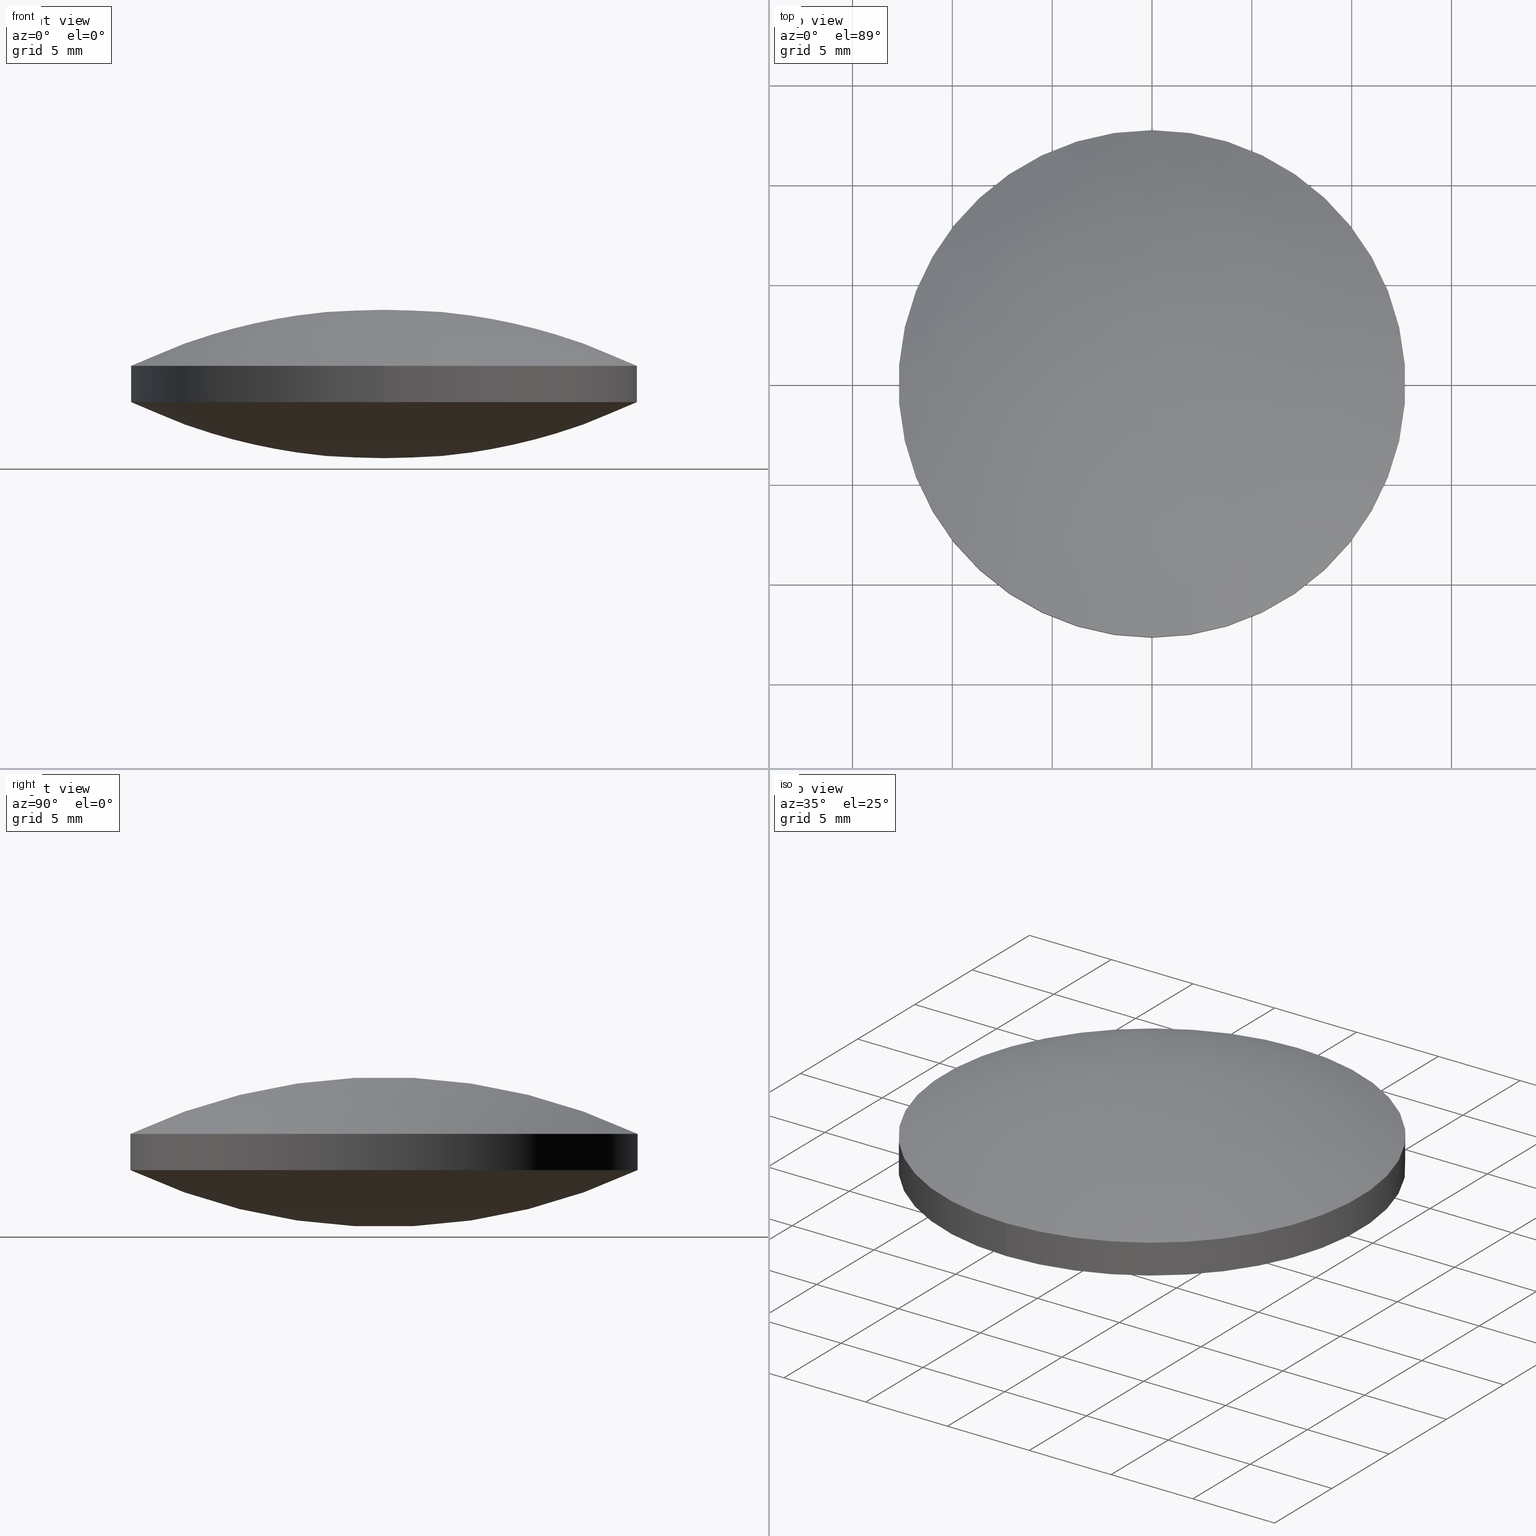
[diagram: canonical four-view strip — front | top / right | iso, engineering-drawing reading convention]
A machine part, canonical four-view strip (front | top / right | iso — engineering-drawing reading convention). The complete STEP part file that produces these views, byte-faithful:
ISO-10303-21;
HEADER;
FILE_DESCRIPTION (( 'STEP AP203' ),
    '1' );
FILE_NAME ('111-0206E BK7 bi-cx 25.4 F30.STEP',
    '2019-01-09T12:15:31',
    ( '' ),
    ( '' ),
    'SwSTEP 2.0',
    'SolidWorks 2017',
    '' );
FILE_SCHEMA (( 'CONFIG_CONTROL_DESIGN' ));
ENDSEC;

DATA;
#1 = PERSON_AND_ORGANIZATION ( #214, #49 ) ;
#2 = CLOSED_SHELL ( 'NONE', ( #187, #109, #166, #210, #21, #236 ) ) ;
#3 = CARTESIAN_POINT ( 'NONE',  ( -9.095884200418115700, -4.578965513329506200, 7.522943102680741800 ) ) ;
#4 = DIRECTION ( 'NONE',  ( -7.060497748353330300E-032, -3.671183807839870100E-016, 1.000000000000000000 ) ) ;
#5 = CYLINDRICAL_SURFACE ( 'NONE', #201, 12.69999999999999900 ) ;
#6 = CARTESIAN_POINT ( 'NONE',  ( 4.996003610813200500E-016, 2.442490654175340100E-015, 2.842753387405240400 ) ) ;
#7 = CC_DESIGN_PERSON_AND_ORGANIZATION_ASSIGNMENT ( #149, #202, ( #195 ) ) ;
#8 = CARTESIAN_POINT ( 'NONE',  ( -7.931029106700789200, -12.84223858196710600, 3.704979079978466800 ) ) ;
#9 = APPROVAL_PERSON_ORGANIZATION ( #141, #198, #129 ) ;
#10 = CARTESIAN_POINT ( 'NONE',  ( -7.931029106700789200, -12.84223858196709700, 3.795020920021535000 ) ) ;
#11 = CARTESIAN_POINT ( 'NONE',  ( 4.996003610813199500E-016, 1.776356839400249300E-015, 4.657246612594759600 ) ) ;
#12 = EDGE_CURVE ( 'NONE', #220, #121, #185, .T. ) ;
#13 = APPROVAL_ROLE ( '' ) ;
#14 = CARTESIAN_POINT ( 'NONE',  ( 2.054901795998458500E-015, 12.70000000000000100, 2.842753387405244900 ) ) ;
#15 = EDGE_LOOP ( 'NONE', ( #40, #239 ) ) ;
#16 = CARTESIAN_POINT ( 'NONE',  ( 4.604542356663950300, 4.578965513329508000, 8.537664126832286400 ) ) ;
#17 = EDGE_LOOP ( 'NONE', ( #73, #255 ) ) ;
#18 = EDGE_CURVE ( 'NONE', #220, #128, #72, .T. ) ;
#19 = PERSON_AND_ORGANIZATION ( #214, #49 ) ;
#20 = AXIS2_PLACEMENT_3D ( 'NONE', #50, #164, #143 ) ;
#21 = ADVANCED_FACE ( 'NONE', ( #22 ), #43, .T. ) ;
#22 = FACE_OUTER_BOUND ( 'NONE', #163, .T. ) ;
#23 = ORIENTED_EDGE ( 'NONE', *, *, #182, .T. ) ;
#24 = ORIENTED_EDGE ( 'NONE', *, *, #249, .T. ) ;
#25 = CARTESIAN_POINT ( 'NONE',  ( -4.604542356663938700, 4.578965513329506200, 8.537664126832297000 ) ) ;
#26 = FACE_OUTER_BOUND ( 'NONE', #75, .T. ) ;
#27 = CARTESIAN_POINT ( 'NONE',  ( -4.604542356663936100, -4.578965513329505300, 8.537664126832297000 ) ) ;
#28 = CARTESIAN_POINT ( 'NONE',  ( 11.55593420558198200, -12.84223858196710000, 1.978938848661997900 ) ) ;
#29 = LOCAL_TIME ( 14, 15, 31.00000000000000000, #53 ) ;
#30 = VERTEX_POINT ( 'NONE', #132 ) ;
#31 = PRODUCT_RELATED_PRODUCT_CATEGORY ( 'detail', '', ( #184 ) ) ;
#32 = DIRECTION ( 'NONE',  ( 7.060497748353330300E-032, 3.671183807839870100E-016, -1.000000000000000000 ) ) ;
#33 = CARTESIAN_POINT ( 'NONE',  ( 9.095884200418119300, 4.578965513329508000, 7.522943102680733900 ) ) ;
#34 =( NAMED_UNIT ( * ) PLANE_ANGLE_UNIT ( ) SI_UNIT ( $, .RADIAN. ) );
#35 = APPLICATION_PROTOCOL_DEFINITION ( 'international standard', 'config_control_design', 1994, #252 ) ;
#36 = ADVANCED_BREP_SHAPE_REPRESENTATION ( '111-0206E BK7 bi-cx 25.4 F30', ( #146, #181 ), #77 ) ;
#37 = AXIS2_PLACEMENT_3D ( 'NONE', #139, #69, #229 ) ;
#38 =( BOUNDED_SURFACE ( )  B_SPLINE_SURFACE ( 3, 3, ( 
 ( #190, #115, #8, #188 ),
 ( #215, #27, #3, #41 ),
 ( #96, #25, #244, #240 ),
 ( #154, #80, #241, #97 ) ),
 .UNSPECIFIED., .F., .F., .F. ) 
 B_SPLINE_SURFACE_WITH_KNOTS ( ( 4, 4 ),
 ( 4, 4 ),
 ( 0.0000000000000000000, 1.000000000000000000 ),
 ( 0.0000000000000000000, 1.000000000000000000 ),
 .UNSPECIFIED. ) 
 GEOMETRIC_REPRESENTATION_ITEM ( )  RATIONAL_B_SPLINE_SURFACE ( (
 ( 1.000000000000000000, 0.9836103128691405800, 0.9836103128691405800, 1.000000000000000000),
 ( 0.9348719009845465300, 0.9195496430199779900, 0.9195496430199779900, 0.9348719009845465300),
 ( 0.9348719009845465300, 0.9195496430199779900, 0.9195496430199779900, 0.9348719009845465300),
 ( 1.000000000000000000, 0.9836103128691405800, 0.9836103128691405800, 1.000000000000000000) ) ) 
 REPRESENTATION_ITEM ( '' )  SURFACE ( )  );
#39 = DATE_AND_TIME ( #231, #89 ) ;
#40 = ORIENTED_EDGE ( 'NONE', *, *, #182, .F. ) ;
#41 = CARTESIAN_POINT ( 'NONE',  ( -13.25319046841192600, -4.578965513329508000, 5.543393934710477900 ) ) ;
#42 = DIRECTION ( 'NONE',  ( 0.0000000000000000000, -1.000000000000000000, -3.414809992080329000E-016 ) ) ;
#43 = CYLINDRICAL_SURFACE ( 'NONE', #85, 12.69999999999999900 ) ;
#44 = ORIENTED_EDGE ( 'NONE', *, *, #111, .F. ) ;
#45 = CARTESIAN_POINT ( 'NONE',  ( 9.095884200418124600, -4.578965513329501700, 7.522943102680734700 ) ) ;
#46 = CARTESIAN_POINT ( 'NONE',  ( 5.204170427930421300E-015, -12.84223858196709500, 2.910249104505537900 ) ) ;
#47 = CARTESIAN_POINT ( 'NONE',  ( -5.871703759095003800E-016, 4.578965513329511500, -1.037664126832292800 ) ) ;
#48 = CARTESIAN_POINT ( 'NONE',  ( 11.55593420558198800, -12.84223858196709900, 5.521061151338002100 ) ) ;
#49 = ORGANIZATION ( 'UNSPECIFIED', 'UNSPECIFIED', '' ) ;
#50 = CARTESIAN_POINT ( 'NONE',  ( 4.996003610813199500E-016, 1.776356839400249300E-015, 4.657246612594759600 ) ) ;
#51 = APPROVAL_ROLE ( '' ) ;
#52 = CARTESIAN_POINT ( 'NONE',  ( 1.734723475976807400E-014, 4.578965513329507100, 8.537664126832289900 ) ) ;
#53 = COORDINATED_UNIVERSAL_TIME_OFFSET ( 2, 0, .AHEAD. ) ;
#54 = PERSON_AND_ORGANIZATION ( #214, #49 ) ;
#55 = ORIENTED_EDGE ( 'NONE', *, *, #193, .T. ) ;
#56 =( BOUNDED_SURFACE ( )  B_SPLINE_SURFACE ( 3, 3, ( 
 ( #28, #68, #178, #137 ),
 ( #156, #45, #173, #179 ),
 ( #126, #33, #16, #52 ),
 ( #70, #107, #145, #161 ) ),
 .UNSPECIFIED., .F., .F., .F. ) 
 B_SPLINE_SURFACE_WITH_KNOTS ( ( 4, 4 ),
 ( 4, 4 ),
 ( 0.0000000000000000000, 1.000000000000000000 ),
 ( 0.0000000000000000000, 1.000000000000000000 ),
 .UNSPECIFIED. ) 
 GEOMETRIC_REPRESENTATION_ITEM ( )  RATIONAL_B_SPLINE_SURFACE ( (
 ( 1.000000000000000000, 0.9836103128691408000, 0.9836103128691408000, 1.000000000000000000),
 ( 0.9348719009845465300, 0.9195496430199782100, 0.9195496430199782100, 0.9348719009845465300),
 ( 0.9348719009845465300, 0.9195496430199782100, 0.9195496430199782100, 0.9348719009845465300),
 ( 1.000000000000000000, 0.9836103128691408000, 0.9836103128691408000, 1.000000000000000000) ) ) 
 REPRESENTATION_ITEM ( '' )  SURFACE ( )  );
#57 = CC_DESIGN_PERSON_AND_ORGANIZATION_ASSIGNMENT ( #165, #225, ( #136 ) ) ;
#58 = LOCAL_TIME ( 14, 15, 31.00000000000000000, #234 ) ;
#59 = PRODUCT_DEFINITION_SHAPE ( 'NONE', 'NONE',  #177 ) ;
#60 = CARTESIAN_POINT ( 'NONE',  ( 4.996003610813200500E-016, -12.69999999999999800, 2.842753387405235500 ) ) ;
#61 = COORDINATED_UNIVERSAL_TIME_OFFSET ( 2, 0, .AHEAD. ) ;
#62 = VECTOR ( 'NONE', #83, 1000.000000000000000 ) ;
#63 = DIRECTION ( 'NONE',  ( 0.0000000000000000000, -1.000000000000000000, -3.756290991288362200E-016 ) ) ;
#64 = CARTESIAN_POINT ( 'NONE',  ( -9.095884200418110400, -4.578965513329498200, -0.02294310268073641200 ) ) ;
#65 = CARTESIAN_POINT ( 'NONE',  ( -4.162366416110042900E-015, -12.84223858196709500, 2.910249104505536500 ) ) ;
#66 = APPROVAL_DATE_TIME ( #153, #172 ) ;
#67 = ORIENTED_EDGE ( 'NONE', *, *, #18, .F. ) ;
#68 = CARTESIAN_POINT ( 'NONE',  ( 7.931029106700797200, -12.84223858196709900, 3.704979079978460100 ) ) ;
#69 = DIRECTION ( 'NONE',  ( -1.000000000000000000, -2.438618327276940000E-016, 4.572098921307439800E-016 ) ) ;
#70 = CARTESIAN_POINT ( 'NONE',  ( 11.55593420558198200, 12.84223858196710900, 1.978938848661997900 ) ) ;
#71 = PERSON_AND_ORGANIZATION_ROLE ( 'design_owner' ) ;
#72 = LINE ( 'NONE', #60, #74 ) ;
#73 = ORIENTED_EDGE ( 'NONE', *, *, #111, .T. ) ;
#74 = VECTOR ( 'NONE', #218, 1000.000000000000000 ) ;
#75 = EDGE_LOOP ( 'NONE', ( #186, #23 ) ) ;
#76 = CARTESIAN_POINT ( 'NONE',  ( 2.054901795998458500E-015, 12.70000000000000100, 2.842753387405244900 ) ) ;
#77 =( GEOMETRIC_REPRESENTATION_CONTEXT ( 3 ) GLOBAL_UNCERTAINTY_ASSIGNED_CONTEXT ( ( #95 ) ) GLOBAL_UNIT_ASSIGNED_CONTEXT ( ( #91, #34, #162 ) ) REPRESENTATION_CONTEXT ( 'NONE', 'WORKASPACE' ) );
#78 = PERSON_AND_ORGANIZATION ( #214, #49 ) ;
#79 = CIRCLE ( 'NONE', #37, 29.78999999999999900 ) ;
#80 = CARTESIAN_POINT ( 'NONE',  ( -4.014866355934887400, 12.84223858196710700, 4.589750895494468400 ) ) ;
#81 = CARTESIAN_POINT ( 'NONE',  ( -11.55593420558198400, -12.84223858196709100, 5.521061151338002100 ) ) ;
#82 = FACE_OUTER_BOUND ( 'NONE', #15, .T. ) ;
#83 = DIRECTION ( 'NONE',  ( -7.060497748353330300E-032, -3.671183807839870100E-016, 1.000000000000000000 ) ) ;
#84 = CARTESIAN_POINT ( 'NONE',  ( -4.604542356663936100, 4.578965513329512400, -1.037664126832292600 ) ) ;
#85 = AXIS2_PLACEMENT_3D ( 'NONE', #217, #4, #63 ) ;
#86 = CARTESIAN_POINT ( 'NONE',  ( 4.604542356663941400, -4.578965513329502600, -1.037664126832292800 ) ) ;
#87 = DATE_TIME_ROLE ( 'classification_date' ) ;
#88 = DATE_AND_TIME ( #167, #170 ) ;
#89 = LOCAL_TIME ( 14, 15, 31.00000000000000000, #194 ) ;
#90 = CC_DESIGN_APPROVAL ( #198, ( #177 ) ) ;
#91 =( LENGTH_UNIT ( ) NAMED_UNIT ( * ) SI_UNIT ( .MILLI., .METRE. ) );
#92 = PERSON_AND_ORGANIZATION_ROLE ( 'creator' ) ;
#93 = ORIENTED_EDGE ( 'NONE', *, *, #144, .F. ) ;
#94 = CC_DESIGN_PERSON_AND_ORGANIZATION_ASSIGNMENT ( #54, #230, ( #177 ) ) ;
#95 = UNCERTAINTY_MEASURE_WITH_UNIT (LENGTH_MEASURE( 1.000000000000000100E-005 ), #91, 'distance_accuracy_value', 'NONE');
#96 = CARTESIAN_POINT ( 'NONE',  ( 9.425364389193862000E-015, 4.578965513329508000, 8.537664126832293500 ) ) ;
#97 = CARTESIAN_POINT ( 'NONE',  ( -11.55593420558200000, 12.84223858196710400, 1.978938848662001400 ) ) ;
#98 = DIRECTION ( 'NONE',  ( 0.0000000000000000000, -1.000000000000000000, -3.756290991288362200E-016 ) ) ;
#99 = CALENDAR_DATE ( 2019, 9, 1 ) ;
#100 = ORIENTED_EDGE ( 'NONE', *, *, #12, .F. ) ;
#101 = DIRECTION ( 'NONE',  ( 0.0000000000000000000, -1.000000000000000000, -3.756290991288362200E-016 ) ) ;
#102 = CARTESIAN_POINT ( 'NONE',  ( -13.25319046841191700, 4.578965513329515100, 1.956606065289523900 ) ) ;
#103 = CARTESIAN_POINT ( 'NONE',  ( -9.095884200418108600, 4.578965513329515100, -0.02294310268073770900 ) ) ;
#104 = CARTESIAN_POINT ( 'NONE',  ( 4.014866355934890100, 12.84223858196710700, 2.910249104505532100 ) ) ;
#105 = APPROVAL_STATUS ( 'not_yet_approved' ) ;
#106 = APPROVAL ( #122, 'UNSPECIFIED' ) ;
#107 = CARTESIAN_POINT ( 'NONE',  ( 7.931029106700795400, 12.84223858196710700, 3.704979079978461000 ) ) ;
#108 = LOCAL_TIME ( 14, 15, 31.00000000000000000, #135 ) ;
#109 = ADVANCED_FACE ( 'NONE', ( #26 ), #38, .T. ) ;
#110 = CARTESIAN_POINT ( 'NONE',  ( 4.996003610813199500E-016, -12.69999999999999800, 4.657246612594756000 ) ) ;
#111 = EDGE_CURVE ( 'NONE', #121, #220, #189, .T. ) ;
#112 = CARTESIAN_POINT ( 'NONE',  ( 3.552713678800500100E-015, 1.065814103640150000E-014, 29.78999999999999900 ) ) ;
#113 = PERSON_AND_ORGANIZATION ( #214, #49 ) ;
#114 = FACE_OUTER_BOUND ( 'NONE', #151, .T. ) ;
#115 = CARTESIAN_POINT ( 'NONE',  ( -4.014866355934878500, -12.84223858196710600, 4.589750895494464800 ) ) ;
#116 = CC_DESIGN_APPROVAL ( #106, ( #195 ) ) ;
#117 = CARTESIAN_POINT ( 'NONE',  ( 7.931029106700799000, 12.84223858196710700, 3.795020920021530600 ) ) ;
#118 =( BOUNDED_SURFACE ( )  B_SPLINE_SURFACE ( 3, 3, ( 
 ( #65, #197, #199, #48 ),
 ( #123, #86, #160, #203 ),
 ( #47, #222, #247, #248 ),
 ( #158, #104, #117, #196 ) ),
 .UNSPECIFIED., .F., .F., .F. ) 
 B_SPLINE_SURFACE_WITH_KNOTS ( ( 4, 4 ),
 ( 4, 4 ),
 ( 0.0000000000000000000, 1.000000000000000000 ),
 ( 0.0000000000000000000, 1.000000000000000000 ),
 .UNSPECIFIED. ) 
 GEOMETRIC_REPRESENTATION_ITEM ( )  RATIONAL_B_SPLINE_SURFACE ( (
 ( 1.000000000000000000, 0.9836103128691405800, 0.9836103128691405800, 1.000000000000000000),
 ( 0.9348719009845467600, 0.9195496430199782100, 0.9195496430199782100, 0.9348719009845467600),
 ( 0.9348719009845467600, 0.9195496430199782100, 0.9195496430199782100, 0.9348719009845467600),
 ( 1.000000000000000000, 0.9836103128691405800, 0.9836103128691405800, 1.000000000000000000) ) ) 
 REPRESENTATION_ITEM ( '' )  SURFACE ( )  );
#119 = CARTESIAN_POINT ( 'NONE',  ( -11.55593420558197900, 12.84223858196711100, 5.521061151337998600 ) ) ;
#120 = CARTESIAN_POINT ( 'NONE',  ( -4.014866355934875800, 12.84223858196710700, 2.910249104505533000 ) ) ;
#121 = VERTEX_POINT ( 'NONE', #76 ) ;
#122 = APPROVAL_STATUS ( 'not_yet_approved' ) ;
#123 = CARTESIAN_POINT ( 'NONE',  ( -2.820440220064390100E-015, -4.578965513329500900, -1.037664126832291900 ) ) ;
#124 = DIRECTION ( 'NONE',  ( 0.0000000000000000000, 0.0000000000000000000, 1.000000000000000000 ) ) ;
#125 = CC_DESIGN_APPROVAL ( #172, ( #136 ) ) ;
#126 = CARTESIAN_POINT ( 'NONE',  ( 13.25319046841191700, 4.578965513329508000, 5.543393934710474400 ) ) ;
#127 = CIRCLE ( 'NONE', #20, 12.69999999999999900 ) ;
#128 = VERTEX_POINT ( 'NONE', #110 ) ;
#129 = APPROVAL_ROLE ( '' ) ;
#130 = APPROVAL_DATE_TIME ( #88, #106 ) ;
#131 = FACE_OUTER_BOUND ( 'NONE', #17, .T. ) ;
#132 = CARTESIAN_POINT ( 'NONE',  ( 2.054901795998458500E-015, 12.70000000000000100, 4.657246612594764000 ) ) ;
#133 = DIRECTION ( 'NONE',  ( 0.0000000000000000000, -1.000000000000000000, -3.756290991288362200E-016 ) ) ;
#134 = CALENDAR_DATE ( 2019, 9, 1 ) ;
#135 = COORDINATED_UNIVERSAL_TIME_OFFSET ( 2, 0, .AHEAD. ) ;
#136 = PRODUCT_DEFINITION_FORMATION_WITH_SPECIFIED_SOURCE ( 'ANY', '', #184, .NOT_KNOWN. ) ;
#137 = CARTESIAN_POINT ( 'NONE',  ( 2.081668171172168500E-014, -12.84223858196710200, 4.589750895494459500 ) ) ;
#138 = LINE ( 'NONE', #14, #62 ) ;
#139 = CARTESIAN_POINT ( 'NONE',  ( -3.552713678800500100E-015, 1.065814103640150000E-014, -22.28999999999999900 ) ) ;
#140 = CARTESIAN_POINT ( 'NONE',  ( 6.938893903907228400E-015, -4.578965513329500900, -1.037664126832290100 ) ) ;
#141 = PERSON_AND_ORGANIZATION ( #214, #49 ) ;
#142 = DATE_TIME_ROLE ( 'creation_date' ) ;
#143 = DIRECTION ( 'NONE',  ( 0.0000000000000000000, -1.000000000000000000, -3.414809992080329000E-016 ) ) ;
#144 = EDGE_CURVE ( 'NONE', #220, #121, #238, .T. ) ;
#145 = CARTESIAN_POINT ( 'NONE',  ( 4.014866355934893600, 12.84223858196710700, 4.589750895494457700 ) ) ;
#146 = MANIFOLD_SOLID_BREP ( 'Imported1', #2 ) ;
#147 = SHAPE_DEFINITION_REPRESENTATION ( #59, #36 ) ;
#148 = CC_DESIGN_SECURITY_CLASSIFICATION ( #195, ( #136 ) ) ;
#149 = PERSON_AND_ORGANIZATION ( #214, #49 ) ;
#150 = APPROVAL_DATE_TIME ( #171, #198 ) ;
#151 = EDGE_LOOP ( 'NONE', ( #100, #207 ) ) ;
#152 = DIRECTION ( 'NONE',  ( -2.438618327276950800E-016, -1.000000000000000000, 0.0000000000000000000 ) ) ;
#153 = DATE_AND_TIME ( #99, #29 ) ;
#154 = CARTESIAN_POINT ( 'NONE',  ( 5.605242491704995700E-015, 12.84223858196710700, 4.589750895494466600 ) ) ;
#155 = DIRECTION ( 'NONE',  ( 1.000000000000000000, -2.438618327276949900E-016, -4.572098921307439800E-016 ) ) ;
#156 = CARTESIAN_POINT ( 'NONE',  ( 13.25319046841191900, -4.578965513329500900, 5.543393934710477900 ) ) ;
#157 = CARTESIAN_POINT ( 'NONE',  ( 1.214306433183765000E-014, 12.84223858196710700, 2.910249104505533900 ) ) ;
#158 = CARTESIAN_POINT ( 'NONE',  ( 2.101097257739582800E-015, 12.84223858196710700, 2.910249104505533000 ) ) ;
#159 = SECURITY_CLASSIFICATION_LEVEL ( 'unclassified' ) ;
#160 = CARTESIAN_POINT ( 'NONE',  ( 9.095884200418117500, -4.578965513329505300, -0.02294310268073727200 ) ) ;
#161 = CARTESIAN_POINT ( 'NONE',  ( 1.387778780781445700E-014, 12.84223858196710700, 4.589750895494461200 ) ) ;
#162 =( NAMED_UNIT ( * ) SI_UNIT ( $, .STERADIAN. ) SOLID_ANGLE_UNIT ( ) );
#163 = EDGE_LOOP ( 'NONE', ( #175, #93, #212, #235 ) ) ;
#164 = DIRECTION ( 'NONE',  ( 7.060497748353330300E-032, 3.671183807839870100E-016, -1.000000000000000000 ) ) ;
#165 = PERSON_AND_ORGANIZATION ( #214, #49 ) ;
#166 = ADVANCED_FACE ( 'NONE', ( #243 ), #5, .T. ) ;
#167 = CALENDAR_DATE ( 2019, 9, 1 ) ;
#168 = DIRECTION ( 'NONE',  ( 7.060497748353330300E-032, 3.671183807839870100E-016, -1.000000000000000000 ) ) ;
#169 = AXIS2_PLACEMENT_3D ( 'NONE', #112, #155, #152 ) ;
#170 = LOCAL_TIME ( 14, 15, 31.00000000000000000, #61 ) ;
#171 = DATE_AND_TIME ( #180, #108 ) ;
#172 = APPROVAL ( #105, 'UNSPECIFIED' ) ;
#173 = CARTESIAN_POINT ( 'NONE',  ( 4.604542356663955600, -4.578965513329502600, 8.537664126832291700 ) ) ;
#174 = CARTESIAN_POINT ( 'NONE',  ( -13.25319046841191900, -4.578965513329497300, 1.956606065289524700 ) ) ;
#175 = ORIENTED_EDGE ( 'NONE', *, *, #193, .F. ) ;
#176 = CARTESIAN_POINT ( 'NONE',  ( -4.014866355934883800, -12.84223858196709700, 2.910249104505537000 ) ) ;
#177 = PRODUCT_DEFINITION ( 'UNKNOWN', '', #136, #245 ) ;
#178 = CARTESIAN_POINT ( 'NONE',  ( 4.014866355934898000, -12.84223858196709900, 4.589750895494457700 ) ) ;
#179 = CARTESIAN_POINT ( 'NONE',  ( 2.081668171172168200E-014, -4.578965513329503500, 8.537664126832291700 ) ) ;
#180 = CALENDAR_DATE ( 2019, 9, 1 ) ;
#181 = AXIS2_PLACEMENT_3D ( 'NONE', #206, #124, #253 ) ;
#182 = EDGE_CURVE ( 'NONE', #128, #30, #79, .T. ) ;
#183 = CC_DESIGN_DATE_AND_TIME_ASSIGNMENT ( #39, #142, ( #177 ) ) ;
#184 = PRODUCT ( '111-0206E BK7 bi-cx 25.4 F30', '111-0206E BK7 bi-cx 25.4 F30', '', ( #233 ) ) ;
#185 = CIRCLE ( 'NONE', #169, 29.78999999999999900 ) ;
#186 = ORIENTED_EDGE ( 'NONE', *, *, #224, .F. ) ;
#187 = ADVANCED_FACE ( 'NONE', ( #131 ), #118, .T. ) ;
#188 = CARTESIAN_POINT ( 'NONE',  ( -11.55593420558198600, -12.84223858196710600, 1.978938848661998800 ) ) ;
#189 = CIRCLE ( 'NONE', #213, 12.69999999999999900 ) ;
#190 = CARTESIAN_POINT ( 'NONE',  ( 1.186870616555459500E-014, -12.84223858196710200, 4.589750895494463000 ) ) ;
#191 = DIRECTION ( 'NONE',  ( -7.060497748353330300E-032, -3.671183807839870100E-016, 1.000000000000000000 ) ) ;
#192 = DIRECTION ( 'NONE',  ( 7.060497748353330300E-032, 3.671183807839870100E-016, -1.000000000000000000 ) ) ;
#193 = EDGE_CURVE ( 'NONE', #121, #30, #138, .T. ) ;
#194 = COORDINATED_UNIVERSAL_TIME_OFFSET ( 2, 0, .AHEAD. ) ;
#195 = SECURITY_CLASSIFICATION ( '', '', #159 ) ;
#196 = CARTESIAN_POINT ( 'NONE',  ( 11.55593420558199500, 12.84223858196710400, 5.521061151337998600 ) ) ;
#197 = CARTESIAN_POINT ( 'NONE',  ( 4.014866355934885600, -12.84223858196709900, 2.910249104505535600 ) ) ;
#198 = APPROVAL ( #204, 'UNSPECIFIED' ) ;
#199 = CARTESIAN_POINT ( 'NONE',  ( 7.931029106700792800, -12.84223858196709900, 3.795020920021534100 ) ) ;
#200 = CARTESIAN_POINT ( 'NONE',  ( 4.996003610813200500E-016, -12.69999999999999800, 2.842753387405235500 ) ) ;
#201 = AXIS2_PLACEMENT_3D ( 'NONE', #6, #191, #98 ) ;
#202 = PERSON_AND_ORGANIZATION_ROLE ( 'classification_officer' ) ;
#203 = CARTESIAN_POINT ( 'NONE',  ( 13.25319046841192300, -4.578965513329505300, 1.956606065289524700 ) ) ;
#204 = APPROVAL_STATUS ( 'not_yet_approved' ) ;
#205 = CC_DESIGN_DATE_AND_TIME_ASSIGNMENT ( #250, #87, ( #195 ) ) ;
#206 = CARTESIAN_POINT ( 'NONE',  ( 0.0000000000000000000, 0.0000000000000000000, 0.0000000000000000000 ) ) ;
#207 = ORIENTED_EDGE ( 'NONE', *, *, #144, .T. ) ;
#208 = EDGE_LOOP ( 'NONE', ( #44, #55, #24, #67 ) ) ;
#209 = CC_DESIGN_PERSON_AND_ORGANIZATION_ASSIGNMENT ( #1, #71, ( #184 ) ) ;
#210 = ADVANCED_FACE ( 'NONE', ( #114 ), #237, .T. ) ;
#211 = CIRCLE ( 'NONE', #216, 12.69999999999999900 ) ;
#212 = ORIENTED_EDGE ( 'NONE', *, *, #18, .T. ) ;
#213 = AXIS2_PLACEMENT_3D ( 'NONE', #221, #168, #133 ) ;
#214 = PERSON ( 'UNSPECIFIED', 'UNSPECIFIED', 'UNSPECIFIED', ('UNSPECIFIED'), ('UNSPECIFIED'), ('UNSPECIFIED') ) ;
#215 = CARTESIAN_POINT ( 'NONE',  ( 1.165863423334874400E-014, -4.578965513329503500, 8.537664126832293500 ) ) ;
#216 = AXIS2_PLACEMENT_3D ( 'NONE', #11, #32, #42 ) ;
#217 = CARTESIAN_POINT ( 'NONE',  ( 4.996003610813200500E-016, 2.442490654175340100E-015, 2.842753387405240400 ) ) ;
#218 = DIRECTION ( 'NONE',  ( -7.060497748353330300E-032, -3.671183807839870100E-016, 1.000000000000000000 ) ) ;
#219 = CARTESIAN_POINT ( 'NONE',  ( 4.996003610813200500E-016, 2.442490654175340100E-015, 2.842753387405240400 ) ) ;
#220 = VERTEX_POINT ( 'NONE', #200 ) ;
#221 = CARTESIAN_POINT ( 'NONE',  ( 4.996003610813200500E-016, 2.442490654175340100E-015, 2.842753387405240400 ) ) ;
#222 = CARTESIAN_POINT ( 'NONE',  ( 4.604542356663945000, 4.578965513329509700, -1.037664126832293500 ) ) ;
#223 = CARTESIAN_POINT ( 'NONE',  ( 8.673617379884033900E-015, 4.578965513329511500, -1.037664126832291900 ) ) ;
#224 = EDGE_CURVE ( 'NONE', #128, #30, #211, .T. ) ;
#225 = PERSON_AND_ORGANIZATION_ROLE ( 'design_supplier' ) ;
#226 = APPROVAL_PERSON_ORGANIZATION ( #78, #172, #51 ) ;
#227 = CARTESIAN_POINT ( 'NONE',  ( -7.931029106700784800, 12.84223858196710700, 3.795020920021531500 ) ) ;
#228 = CC_DESIGN_PERSON_AND_ORGANIZATION_ASSIGNMENT ( #113, #92, ( #136 ) ) ;
#229 = DIRECTION ( 'NONE',  ( 2.438618327276942500E-016, -1.000000000000000000, 4.658539042569472200E-016 ) ) ;
#230 = PERSON_AND_ORGANIZATION_ROLE ( 'creator' ) ;
#231 = CALENDAR_DATE ( 2019, 9, 1 ) ;
#232 = AXIS2_PLACEMENT_3D ( 'NONE', #219, #192, #101 ) ;
#233 = MECHANICAL_CONTEXT ( 'NONE', #252, 'mechanical' ) ;
#234 = COORDINATED_UNIVERSAL_TIME_OFFSET ( 2, 0, .AHEAD. ) ;
#235 = ORIENTED_EDGE ( 'NONE', *, *, #224, .T. ) ;
#236 = ADVANCED_FACE ( 'NONE', ( #82 ), #56, .T. ) ;
#237 =( BOUNDED_SURFACE ( )  B_SPLINE_SURFACE ( 3, 3, ( 
 ( #81, #10, #176, #46 ),
 ( #174, #64, #246, #140 ),
 ( #102, #103, #84, #223 ),
 ( #119, #227, #120, #157 ) ),
 .UNSPECIFIED., .F., .F., .F. ) 
 B_SPLINE_SURFACE_WITH_KNOTS ( ( 4, 4 ),
 ( 4, 4 ),
 ( 0.0000000000000000000, 1.000000000000000000 ),
 ( 0.0000000000000000000, 1.000000000000000000 ),
 .UNSPECIFIED. ) 
 GEOMETRIC_REPRESENTATION_ITEM ( )  RATIONAL_B_SPLINE_SURFACE ( (
 ( 1.000000000000000000, 0.9836103128691405800, 0.9836103128691405800, 1.000000000000000000),
 ( 0.9348719009845467600, 0.9195496430199782100, 0.9195496430199782100, 0.9348719009845467600),
 ( 0.9348719009845467600, 0.9195496430199782100, 0.9195496430199782100, 0.9348719009845467600),
 ( 1.000000000000000000, 0.9836103128691405800, 0.9836103128691405800, 1.000000000000000000) ) ) 
 REPRESENTATION_ITEM ( '' )  SURFACE ( )  );
#238 = CIRCLE ( 'NONE', #232, 12.69999999999999900 ) ;
#239 = ORIENTED_EDGE ( 'NONE', *, *, #249, .F. ) ;
#240 = CARTESIAN_POINT ( 'NONE',  ( -13.25319046841193000, 4.578965513329502600, 5.543393934710477900 ) ) ;
#241 = CARTESIAN_POINT ( 'NONE',  ( -7.931029106700800700, 12.84223858196710700, 3.704979079978470800 ) ) ;
#242 = APPROVAL_PERSON_ORGANIZATION ( #19, #106, #13 ) ;
#243 = FACE_OUTER_BOUND ( 'NONE', #208, .T. ) ;
#244 = CARTESIAN_POINT ( 'NONE',  ( -9.095884200418121100, 4.578965513329505300, 7.522943102680742700 ) ) ;
#245 = DESIGN_CONTEXT ( 'detailed design', #254, 'design' ) ;
#246 = CARTESIAN_POINT ( 'NONE',  ( -4.604542356663937000, -4.578965513329500900, -1.037664126832290800 ) ) ;
#247 = CARTESIAN_POINT ( 'NONE',  ( 9.095884200418121100, 4.578965513329508900, -0.02294310268073814600 ) ) ;
#248 = CARTESIAN_POINT ( 'NONE',  ( 13.25319046841192600, 4.578965513329509700, 1.956606065289523900 ) ) ;
#249 = EDGE_CURVE ( 'NONE', #30, #128, #127, .T. ) ;
#250 = DATE_AND_TIME ( #134, #58 ) ;
#251 = APPLICATION_PROTOCOL_DEFINITION ( 'international standard', 'config_control_design', 1994, #254 ) ;
#252 = APPLICATION_CONTEXT ( 'configuration controlled 3d designs of mechanical parts and assemblies' ) ;
#253 = DIRECTION ( 'NONE',  ( 1.000000000000000000, 0.0000000000000000000, 0.0000000000000000000 ) ) ;
#254 = APPLICATION_CONTEXT ( 'configuration controlled 3d designs of mechanical parts and assemblies' ) ;
#255 = ORIENTED_EDGE ( 'NONE', *, *, #12, .T. ) ;
ENDSEC;
END-ISO-10303-21;
